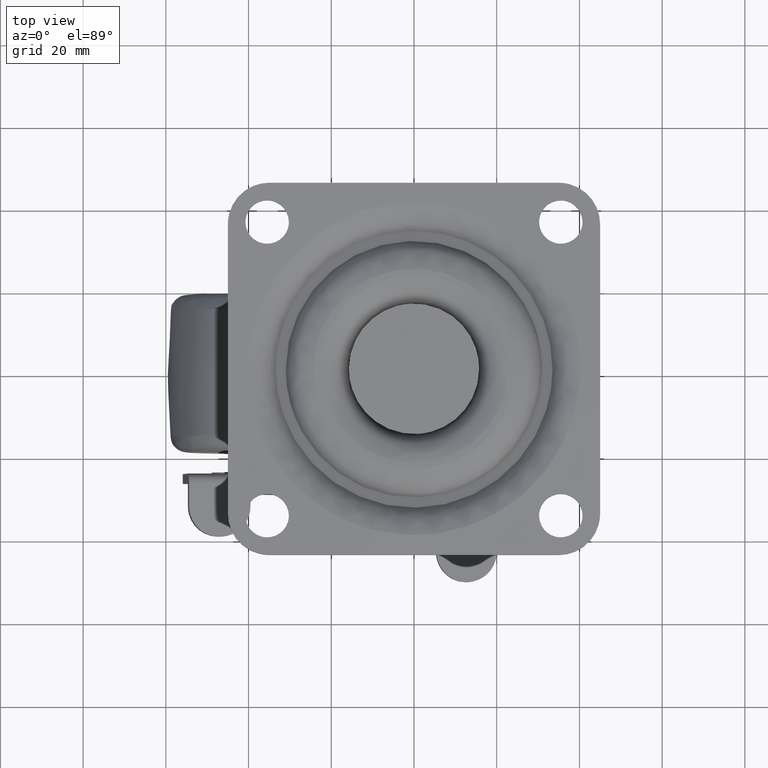
[diagram: clean part render]
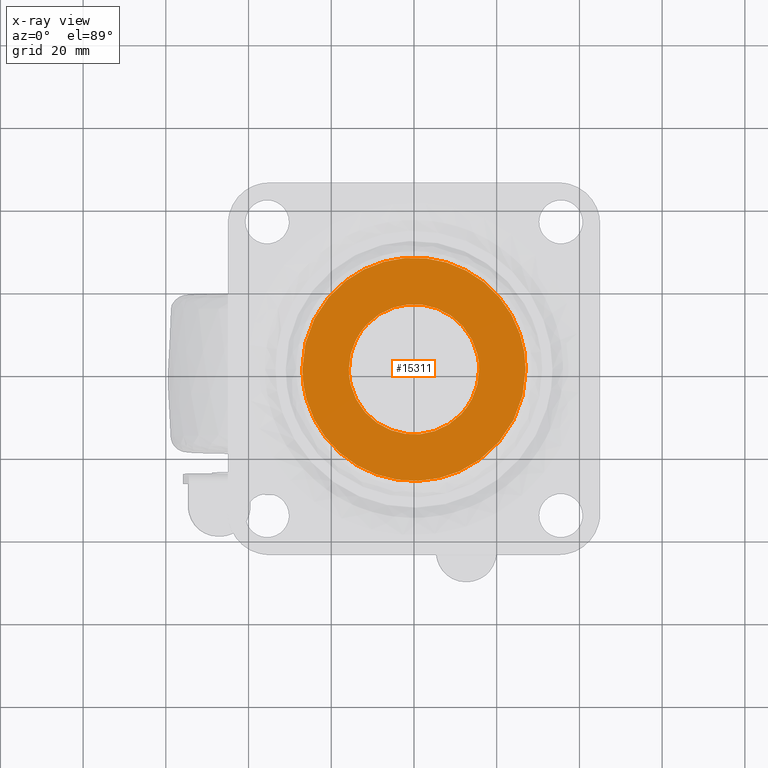
[diagram: x-ray — body ghosted, one internal face saturated and labeled with its STEP entity id]
A machine part, top view, then the same camera in x-ray: the body is ghosted and one INTERNAL B-rep face — a face not visible from any outside direction — is saturated and labeled: STEP entity #15311.
In plain terms, the highlighted face is a freeform B-spline surface patch.
Its self-contained STEP definition (entity closure, byte-faithful):
#15092=CARTESIAN_POINT('',(11.424646860448060,-10.841584022367480,-8.200000000000102));
#15093=VERTEX_POINT('',#15092);
#15099=CARTESIAN_POINT('',(15.750000000000000,0.0,-8.200000000000101));
#15100=VERTEX_POINT('',#15099);
#15101=CARTESIAN_POINT('',(15.750000000000000,0.0,-8.200000000000101));
#15102=CARTESIAN_POINT('',(15.749999999999995,-6.283612413775906,-8.200000000000101));
#15103=CARTESIAN_POINT('',(11.424646860448073,-10.841584022367488,-8.200000000000101));
#15111=(BOUNDED_CURVE()B_SPLINE_CURVE(2,(#15101,#15102,#15103),.UNSPECIFIED.,.F.,.U.)B_SPLINE_CURVE_WITH_KNOTS((3,3),(0.500000000000000,0.621049519462403),.UNSPECIFIED.)CURVE()GEOMETRIC_REPRESENTATION_ITEM()RATIONAL_B_SPLINE_CURVE((1.0,0.858181666435341,0.853699661902367))REPRESENTATION_ITEM(''));
#15112=EDGE_CURVE('',#15100,#15093,#15111,.T.);
#15114=CARTESIAN_POINT('',(-11.424646860448050,10.841584022367480,-8.200000000000102));
#15115=VERTEX_POINT('',#15114);
#15116=CARTESIAN_POINT('',(-11.424646860448071,10.841584022367492,-8.200000000000101));
#15117=CARTESIAN_POINT('',(-6.766734463832701,15.750000000000002,-8.200000000000101));
#15118=CARTESIAN_POINT('',(0.0,15.750000000000000,-8.200000000000101));
#15119=CARTESIAN_POINT('',(15.749999999999995,15.749999999999995,-8.200000000000101));
#15120=CARTESIAN_POINT('',(15.750000000000000,0.0,-8.200000000000101));
#15128=(BOUNDED_CURVE()B_SPLINE_CURVE(2,(#15116,#15117,#15118,#15119,#15120),.UNSPECIFIED.,.F.,.U.)B_SPLINE_CURVE_WITH_KNOTS((3,2,3),(0.121049519462403,0.250000000000000,0.500000000000000),.UNSPECIFIED.)CURVE()GEOMETRIC_REPRESENTATION_ITEM()RATIONAL_B_SPLINE_CURVE((0.853699661902367,0.848925114751207,1.0,0.707106781186547,1.0))REPRESENTATION_ITEM(''));
#15129=EDGE_CURVE('',#15115,#15100,#15128,.T.);
#15173=CARTESIAN_POINT('',(-15.750000000000000,0.0,-8.200000000000101));
#15174=VERTEX_POINT('',#15173);
#15175=CARTESIAN_POINT('',(-15.750000000000000,0.0,-8.200000000000101));
#15176=CARTESIAN_POINT('',(-15.749999999999996,6.283612413775908,-8.200000000000101));
#15177=CARTESIAN_POINT('',(-11.424646860448071,10.841584022367492,-8.200000000000101));
#15185=(BOUNDED_CURVE()B_SPLINE_CURVE(2,(#15175,#15176,#15177),.UNSPECIFIED.,.F.,.U.)B_SPLINE_CURVE_WITH_KNOTS((3,3),(0.0,0.121049519462403),.UNSPECIFIED.)CURVE()GEOMETRIC_REPRESENTATION_ITEM()RATIONAL_B_SPLINE_CURVE((1.0,0.858181666435340,0.853699661902367))REPRESENTATION_ITEM(''));
#15186=EDGE_CURVE('',#15174,#15115,#15185,.T.);
#15188=CARTESIAN_POINT('',(11.424646860448073,-10.841584022367488,-8.200000000000101));
#15189=CARTESIAN_POINT('',(6.766734463832703,-15.750000000000002,-8.200000000000101));
#15190=CARTESIAN_POINT('',(0.0,-15.750000000000000,-8.200000000000101));
#15191=CARTESIAN_POINT('',(-15.749999999999995,-15.749999999999995,-8.200000000000101));
#15192=CARTESIAN_POINT('',(-15.750000000000000,0.0,-8.200000000000101));
#15200=(BOUNDED_CURVE()B_SPLINE_CURVE(2,(#15188,#15189,#15190,#15191,#15192),.UNSPECIFIED.,.F.,.U.)B_SPLINE_CURVE_WITH_KNOTS((3,2,3),(0.621049519462403,0.750000000000000,1.0),.UNSPECIFIED.)CURVE()GEOMETRIC_REPRESENTATION_ITEM()RATIONAL_B_SPLINE_CURVE((0.853699661902367,0.848925114751207,1.0,0.707106781186547,1.0))REPRESENTATION_ITEM(''));
#15201=EDGE_CURVE('',#15093,#15174,#15200,.T.);
#15235=CARTESIAN_POINT('',(29.697299897250300,-29.697299895337441,-8.200000000000101));
#15236=CARTESIAN_POINT('',(-29.697301345643162,-29.697299895337441,-8.200000000000101));
#15237=CARTESIAN_POINT('',(29.697299897250300,29.697301343730309,-8.200000000000101));
#15238=CARTESIAN_POINT('',(-29.697301345643162,29.697301343730309,-8.200000000000101));
#15239=B_SPLINE_SURFACE_WITH_KNOTS('',1,1,((#15235,#15237),(#15236,#15238)),.UNSPECIFIED.,.F.,.F.,.U.,(2,2),(2,2),(0.0,59.394601242893458),(0.0,59.394601239067747),.UNSPECIFIED.);
#15240=CARTESIAN_POINT('',(27.000000001739039,2.634884E-016,-8.200000000000051));
#15241=VERTEX_POINT('',#15240);
#15242=CARTESIAN_POINT('',(-27.000000001739039,-2.033979E-015,-8.199999999999999));
#15243=VERTEX_POINT('',#15242);
#15244=CARTESIAN_POINT('',(27.000000001739039,2.634884E-016,-8.200000000000051));
#15245=CARTESIAN_POINT('',(27.000059788300799,-1.325335467183702,-8.200000000000060));
#15246=CARTESIAN_POINT('',(26.792268587396929,-4.141722424634215,-8.200000000000042));
#15247=CARTESIAN_POINT('',(25.970839307060579,-7.648618260294605,-8.200000000000056));
#15248=CARTESIAN_POINT('',(24.872956758826820,-10.601800385348829,-8.200000000000058));
#15249=CARTESIAN_POINT('',(23.436410380047018,-13.592049589555870,-8.200000000000010));
#15250=CARTESIAN_POINT('',(21.279617928050911,-16.819786257627118,-8.200000000000046));
#15251=CARTESIAN_POINT('',(18.168908740760418,-20.127504592238441,-8.200000000000072));
#15252=CARTESIAN_POINT('',(15.007758780426339,-22.563360661771569,-8.199999999999951));
#15253=CARTESIAN_POINT('',(11.674592187149790,-24.424578395647170,-8.200000000000223));
#15254=CARTESIAN_POINT('',(8.698104161791557,-25.625475688907461,-8.200000000000047));
#15255=CARTESIAN_POINT('',(5.230995456071364,-26.573582479409438,-8.199999999999786));
#15256=CARTESIAN_POINT('',(1.770358724804532,-27.032803380255991,-8.200000000000630));
#15257=CARTESIAN_POINT('',(-1.603817640623454,-27.001609412372030,-8.199999999999555));
#15258=CARTESIAN_POINT('',(-5.064171435773509,-26.607278960972440,-8.200000000000410));
#15259=CARTESIAN_POINT('',(-8.449730036621464,-25.748194804824220,-8.199999999999843));
#15260=CARTESIAN_POINT('',(-11.614254445084219,-24.425849923015729,-8.200000000000051));
#15261=CARTESIAN_POINT('',(-14.092198903888720,-23.081767907624720,-8.200000000000005));
#15262=CARTESIAN_POINT('',(-16.290469945314332,-21.593352945402181,-8.200000000000019));
#15263=CARTESIAN_POINT('',(-18.490374152124922,-19.742264790410339,-8.200000000000001));
#15264=CARTESIAN_POINT('',(-20.870157839107851,-17.273396573859440,-8.200000000000015));
#15265=CARTESIAN_POINT('',(-23.272939756120589,-13.949244281937229,-8.199999999999958));
#15266=CARTESIAN_POINT('',(-25.071893112480439,-10.263167851223940,-8.200000000000156));
#15267=CARTESIAN_POINT('',(-26.229628892722889,-6.684878888436626,-8.199999999999518));
#15268=CARTESIAN_POINT('',(-26.857512151997209,-3.423836122725524,-8.200000000001431));
#15269=CARTESIAN_POINT('',(-27.000025726324889,-1.104462857147788,-8.199999999999019));
#15270=CARTESIAN_POINT('',(-27.000000001739039,-2.033979E-015,-8.199999999999999));
#15271=B_SPLINE_CURVE_WITH_KNOTS('',3,(#15244,#15245,#15246,#15247,#15248,#15249,#15250,#15251,#15252,#15253,#15254,#15255,#15256,#15257,#15258,#15259,#15260,#15261,#15262,#15263,#15264,#15265,#15266,#15267,#15268,#15269,#15270),.UNSPECIFIED.,.F.,.U.,(4,1,1,1,1,1,1,1,1,1,1,1,1,1,1,1,1,1,1,1,1,1,1,1,4),(0.000000102047991,3.976013091894885,8.449174064406009,10.768520831215641,13.419255515052431,18.389390014275850,22.365478648804650,27.004254118298000,30.317683145466841,33.796750918287600,36.613170176226653,41.086218469489062,44.233880177756589,46.718935927809568,51.523378650124563,54.671155121315472,56.990515826156880,59.972606158726279,62.623330201269169,65.605402775894788,70.244186655266461,74.882951030542927,77.864993738503841,81.509742557205797,84.823134712338017),.UNSPECIFIED.);
#15272=EDGE_CURVE('',#15241,#15243,#15271,.T.);
#15273=ORIENTED_EDGE('',*,*,#15272,.F.);
#15274=CARTESIAN_POINT('',(-27.000000001739039,-2.033979E-015,-8.199999999999999));
#15275=CARTESIAN_POINT('',(-27.000365881728960,1.932844755084178,-8.199999999999982));
#15276=CARTESIAN_POINT('',(-26.696202965761231,4.749066578085253,-8.200000000000021));
#15277=CARTESIAN_POINT('',(-25.528295258104691,9.072607688587496,-8.200000000000028));
#15278=CARTESIAN_POINT('',(-23.998840014790751,12.640620932460010,-8.199999999999948));
#15279=CARTESIAN_POINT('',(-21.605871611634718,16.368568970700480,-8.200000000000077));
#15280=CARTESIAN_POINT('',(-19.183851887520550,19.107678154293978,-8.199999999999953));
#15281=CARTESIAN_POINT('',(-16.768445667571989,21.217081193858959,-8.200000000000017));
#15282=CARTESIAN_POINT('',(-14.428037111301670,22.886992000738800,-8.200000000000012));
#15283=CARTESIAN_POINT('',(-11.964430226107879,24.262711717275678,-8.200000000000019));
#15284=CARTESIAN_POINT('',(-9.115308808239776,25.473676274629209,-8.199999999999964));
#15285=CARTESIAN_POINT('',(-5.776057786376843,26.475562470429999,-8.200000000000211));
#15286=CARTESIAN_POINT('',(-2.211613344066675,26.993087276506280,-8.199999999999649));
#15287=CARTESIAN_POINT('',(1.659113723160768,27.028702822526650,-8.200000000000532));
#15288=CARTESIAN_POINT('',(4.903042653986242,26.628617854452820,-8.199999999999786));
#15289=CARTESIAN_POINT('',(8.169538356111367,25.788979487731641,-8.200000000000008));
#15290=CARTESIAN_POINT('',(11.432471865008210,24.564858591894531,-8.200000000000330));
#15291=CARTESIAN_POINT('',(14.977256432831441,22.613875576846631,-8.199999999999349));
#15292=CARTESIAN_POINT('',(17.932743334255768,20.277948158795429,-8.200000000000911));
#15293=CARTESIAN_POINT('',(20.379929587169659,17.800501373496179,-8.200000000000548));
#15294=CARTESIAN_POINT('',(22.499978420036580,15.101122345030250,-8.199999999999376));
#15295=CARTESIAN_POINT('',(24.640970817466641,11.348829548946810,-8.200000000000539));
#15296=CARTESIAN_POINT('',(25.990157230074960,7.649739404315277,-8.199999999999690));
#15297=CARTESIAN_POINT('',(26.814502619160368,3.755145646511647,-8.200000000000298));
#15298=CARTESIAN_POINT('',(27.000109040935222,1.435812815126353,-8.199999999999930));
#15299=CARTESIAN_POINT('',(27.000000001739039,2.634884E-016,-8.200000000000051));
#15300=B_SPLINE_CURVE_WITH_KNOTS('',3,(#15274,#15275,#15276,#15277,#15278,#15279,#15280,#15281,#15282,#15283,#15284,#15285,#15286,#15287,#15288,#15289,#15290,#15291,#15292,#15293,#15294,#15295,#15296,#15297,#15298,#15299),.UNSPECIFIED.,.F.,.U.,(4,1,1,1,1,1,1,1,1,1,1,1,1,1,1,1,1,1,1,1,1,1,1,4),(0.000000101649363,5.798430214599193,8.449174064045167,13.419255514713390,17.395355984795330,21.702797505948030,24.353522664735390,27.004254118021151,30.317683145205290,32.802714034161497,36.281804843200732,40.754924906400838,43.571248899397112,47.878632983881921,50.529388570411548,53.677098126107659,58.315882772121569,62.623330201160712,64.942719357560250,68.753149578405427,72.894920885703471,77.864993738470588,80.515713890773824,84.823134712338856),.UNSPECIFIED.);
#15301=EDGE_CURVE('',#15243,#15241,#15300,.T.);
#15302=ORIENTED_EDGE('',*,*,#15301,.F.);
#15303=EDGE_LOOP('',(#15273,#15302));
#15304=FACE_OUTER_BOUND('',#15303,.T.);
#15305=ORIENTED_EDGE('',*,*,#15112,.T.);
#15306=ORIENTED_EDGE('',*,*,#15201,.T.);
#15307=ORIENTED_EDGE('',*,*,#15186,.T.);
#15308=ORIENTED_EDGE('',*,*,#15129,.T.);
#15309=EDGE_LOOP('',(#15305,#15306,#15307,#15308));
#15310=FACE_BOUND('',#15309,.T.);
#15311=ADVANCED_FACE('',(#15304,#15310),#15239,.F.);